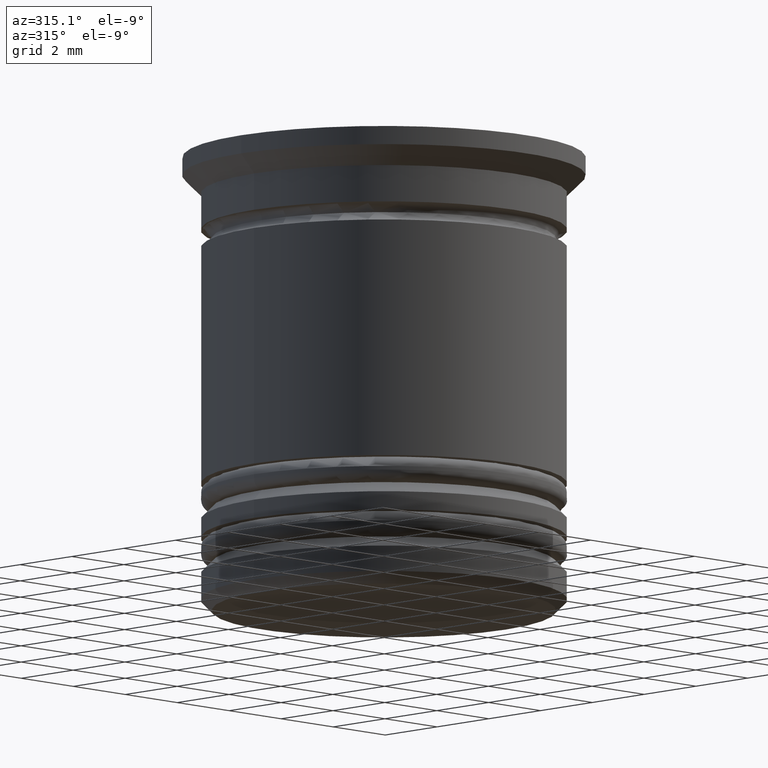
[diagram: clean part render]
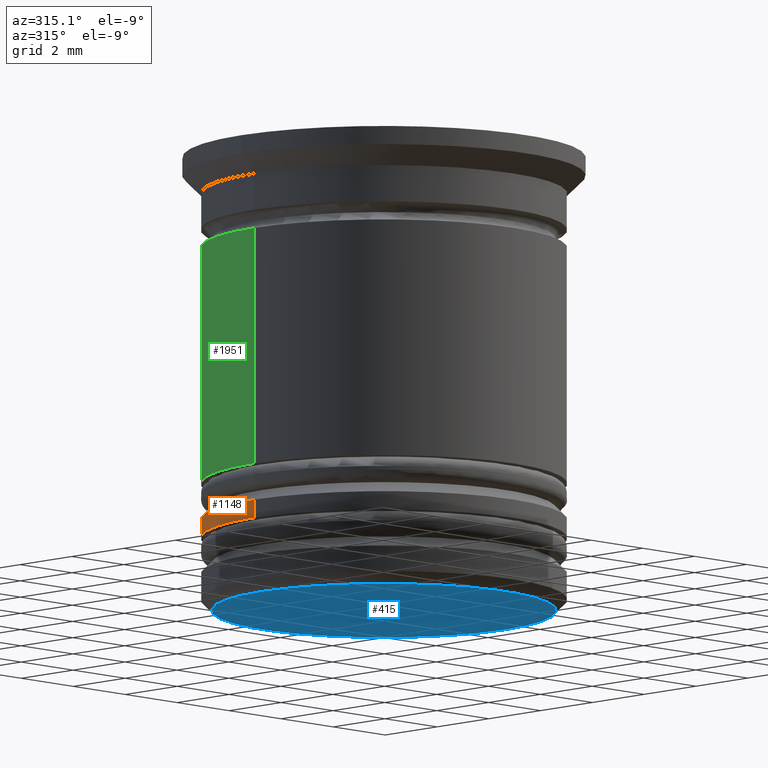
[diagram: same view with three faces highlighted in distinct colors, each labeled with its STEP entity id]
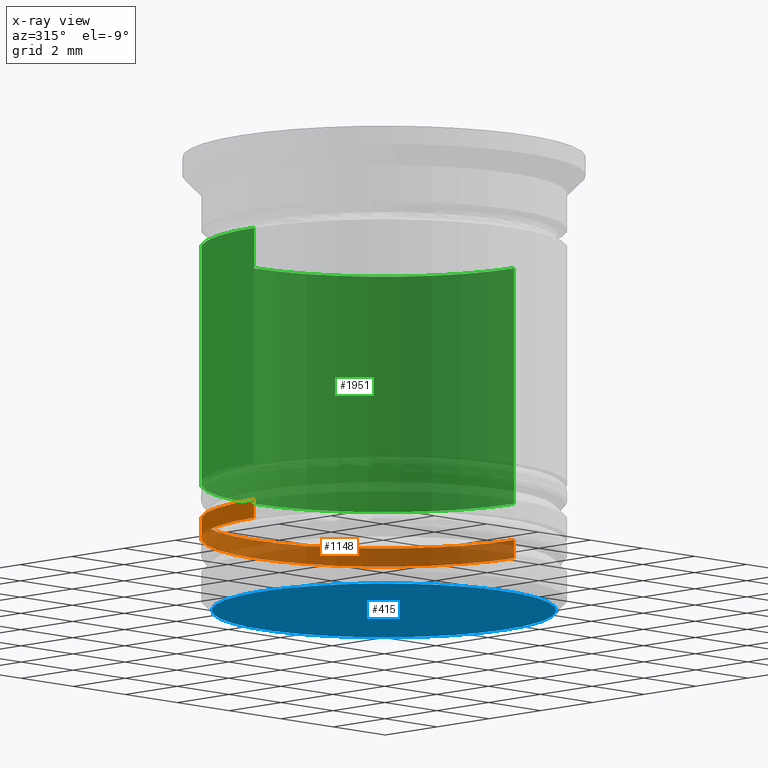
[diagram: x-ray of the same camera — body ghosted, the three highlighted faces saturated]
A machine part, auxiliary view with three faces highlighted in distinct colors.
The next image is the same camera in x-ray (body ghosted, the three faces saturated) — at least one of them is partly hidden behind the body in this view.
Their STEP definitions:

[orange] entity #1148 — the highlighted cylindrical surface (partial cylindrical patch) has radius 5 mm, axis along (-0, -0, 1).
#55 = DIRECTION ( 'NONE',  ( -0.000000000000000000, -0.000000000000000000, 1.000000000000000000 ) ) ;
#73 = VECTOR ( 'NONE', #1857, 1000.000000000000000 ) ;
#201 = DIRECTION ( 'NONE',  ( -0.000000000000000000, -0.000000000000000000, 1.000000000000000000 ) ) ;
#202 = CARTESIAN_POINT ( 'NONE',  ( 0.000000000000000000, 0.000000000000000000, 0.000000000000000000 ) ) ;
#235 = CYLINDRICAL_SURFACE ( 'NONE', #1730, 5.000000000000000888 ) ;
#241 = DIRECTION ( 'NONE',  ( -0.000000000000000000, -0.000000000000000000, 1.000000000000000000 ) ) ;
#250 = EDGE_CURVE ( 'NONE', #570, #2009, #323, .T. ) ;
#273 = CARTESIAN_POINT ( 'NONE',  ( -5.000000000000000888, 6.123233995736767268E-16, -10.00000000000000533 ) ) ;
#323 = CIRCLE ( 'NONE', #1306, 5.000000000000000888 ) ;
#411 = EDGE_CURVE ( 'NONE', #1025, #2009, #1646, .T. ) ;
#570 = VERTEX_POINT ( 'NONE', #273 ) ;
#583 = DIRECTION ( 'NONE',  ( -1.000000000000000000, 0.000000000000000000, 0.000000000000000000 ) ) ;
#801 = VERTEX_POINT ( 'NONE', #2066 ) ;
#844 = EDGE_CURVE ( 'NONE', #1025, #801, #1761, .T. ) ;
#860 = FACE_OUTER_BOUND ( 'NONE', #877, .T. ) ;
#877 = EDGE_LOOP ( 'NONE', ( #1924, #2020, #1322, #977 ) ) ;
#881 = DIRECTION ( 'NONE',  ( 0.000000000000000000, 0.000000000000000000, -1.000000000000000000 ) ) ;
#909 = CARTESIAN_POINT ( 'NONE',  ( -5.000000000000000888, 6.123233995736767268E-16, 0.000000000000000000 ) ) ;
#947 = CARTESIAN_POINT ( 'NONE',  ( 5.000000000000001776, 0.000000000000000000, -10.50000000000000178 ) ) ;
#977 = ORIENTED_EDGE ( 'NONE', *, *, #411, .F. ) ;
#1025 = VERTEX_POINT ( 'NONE', #947 ) ;
#1148 = ADVANCED_FACE ( 'NONE', ( #860 ), #235, .T. ) ;
#1172 = DIRECTION ( 'NONE',  ( 1.000000000000000000, 0.000000000000000000, 0.000000000000000000 ) ) ;
#1306 = AXIS2_PLACEMENT_3D ( 'NONE', #2002, #881, #583 ) ;
#1322 = ORIENTED_EDGE ( 'NONE', *, *, #250, .T. ) ;
#1347 = CARTESIAN_POINT ( 'NONE',  ( 5.000000000000000888, 0.000000000000000000, 0.000000000000000000 ) ) ;
#1473 = AXIS2_PLACEMENT_3D ( 'NONE', #1990, #241, #1505 ) ;
#1505 = DIRECTION ( 'NONE',  ( 1.000000000000000000, 0.000000000000000000, 0.000000000000000000 ) ) ;
#1529 = CARTESIAN_POINT ( 'NONE',  ( 5.000000000000000888, 0.000000000000000000, -10.00000000000000533 ) ) ;
#1646 = LINE ( 'NONE', #1347, #1836 ) ;
#1730 = AXIS2_PLACEMENT_3D ( 'NONE', #202, #55, #1172 ) ;
#1761 = CIRCLE ( 'NONE', #1473, 5.000000000000001776 ) ;
#1836 = VECTOR ( 'NONE', #201, 1000.000000000000000 ) ;
#1857 = DIRECTION ( 'NONE',  ( -0.000000000000000000, -0.000000000000000000, 1.000000000000000000 ) ) ;
#1876 = LINE ( 'NONE', #909, #73 ) ;
#1924 = ORIENTED_EDGE ( 'NONE', *, *, #844, .T. ) ;
#1929 = EDGE_CURVE ( 'NONE', #801, #570, #1876, .T. ) ;
#1990 = CARTESIAN_POINT ( 'NONE',  ( 0.000000000000000000, 0.000000000000000000, -10.50000000000000178 ) ) ;
#2002 = CARTESIAN_POINT ( 'NONE',  ( 0.000000000000000000, 0.000000000000000000, -10.00000000000000533 ) ) ;
#2009 = VERTEX_POINT ( 'NONE', #1529 ) ;
#2020 = ORIENTED_EDGE ( 'NONE', *, *, #1929, .T. ) ;
#2066 = CARTESIAN_POINT ( 'NONE',  ( -5.000000000000001776, 6.123233995736768255E-16, -10.50000000000000178 ) ) ;

[blue] entity #415 — the highlighted planar face has unit normal (0, 0, -1).
#110 = CARTESIAN_POINT ( 'NONE',  ( 0.000000000000000000, 0.000000000000000000, -12.50000000000000000 ) ) ;
#129 = AXIS2_PLACEMENT_3D ( 'NONE', #1608, #1596, #149 ) ;
#149 = DIRECTION ( 'NONE',  ( -1.000000000000000000, 0.000000000000000000, 0.000000000000000000 ) ) ;
#185 = AXIS2_PLACEMENT_3D ( 'NONE', #1490, #345, #512 ) ;
#303 = ORIENTED_EDGE ( 'NONE', *, *, #2042, .T. ) ;
#317 = CARTESIAN_POINT ( 'NONE',  ( 4.699999999999999289, 0.000000000000000000, -12.50000000000000000 ) ) ;
#345 = DIRECTION ( 'NONE',  ( 0.000000000000000000, 0.000000000000000000, -1.000000000000000000 ) ) ;
#415 = ADVANCED_FACE ( 'NONE', ( #658 ), #835, .T. ) ;
#512 = DIRECTION ( 'NONE',  ( -1.000000000000000000, 0.000000000000000000, -0.000000000000000000 ) ) ;
#555 = VERTEX_POINT ( 'NONE', #317 ) ;
#637 = CIRCLE ( 'NONE', #897, 4.699999999999999289 ) ;
#658 = FACE_OUTER_BOUND ( 'NONE', #1749, .T. ) ;
#835 = PLANE ( 'NONE',  #185 ) ;
#897 = AXIS2_PLACEMENT_3D ( 'NONE', #110, #1522, #1841 ) ;
#987 = CARTESIAN_POINT ( 'NONE',  ( -4.699999999999999289, 5.939536975864662969E-16, -12.50000000000000000 ) ) ;
#1050 = EDGE_CURVE ( 'NONE', #555, #1884, #2004, .T. ) ;
#1231 = ORIENTED_EDGE ( 'NONE', *, *, #1050, .T. ) ;
#1490 = CARTESIAN_POINT ( 'NONE',  ( 0.000000000000000000, 5.000000000000000888, -12.50000000000000000 ) ) ;
#1522 = DIRECTION ( 'NONE',  ( 0.000000000000000000, 0.000000000000000000, -1.000000000000000000 ) ) ;
#1596 = DIRECTION ( 'NONE',  ( 0.000000000000000000, 0.000000000000000000, -1.000000000000000000 ) ) ;
#1608 = CARTESIAN_POINT ( 'NONE',  ( 0.000000000000000000, 0.000000000000000000, -12.50000000000000000 ) ) ;
#1749 = EDGE_LOOP ( 'NONE', ( #1231, #303 ) ) ;
#1841 = DIRECTION ( 'NONE',  ( -1.000000000000000000, 0.000000000000000000, 0.000000000000000000 ) ) ;
#1884 = VERTEX_POINT ( 'NONE', #987 ) ;
#2004 = CIRCLE ( 'NONE', #129, 4.699999999999999289 ) ;
#2042 = EDGE_CURVE ( 'NONE', #1884, #555, #637, .T. ) ;

[green] entity #1951 — the highlighted cylindrical surface (partial cylindrical patch) has radius 5 mm, axis along (-0, -0, 1).
#59 = EDGE_CURVE ( 'NONE', #1342, #1024, #932, .T. ) ;
#67 = DIRECTION ( 'NONE',  ( 1.000000000000000000, 0.000000000000000000, 0.000000000000000000 ) ) ;
#100 = AXIS2_PLACEMENT_3D ( 'NONE', #1036, #366, #67 ) ;
#290 = DIRECTION ( 'NONE',  ( 1.000000000000000000, 0.000000000000000000, 0.000000000000000000 ) ) ;
#306 = EDGE_CURVE ( 'NONE', #485, #1342, #518, .T. ) ;
#332 = CARTESIAN_POINT ( 'NONE',  ( 4.999999999999999112, 0.000000000000000000, -2.500000000000000000 ) ) ;
#366 = DIRECTION ( 'NONE',  ( -0.000000000000000000, -0.000000000000000000, 1.000000000000000000 ) ) ;
#482 = CARTESIAN_POINT ( 'NONE',  ( -5.000000000000000888, 6.123233995736767268E-16, -9.000000000000001776 ) ) ;
#485 = VERTEX_POINT ( 'NONE', #547 ) ;
#518 = CIRCLE ( 'NONE', #1632, 5.000000000000000888 ) ;
#547 = CARTESIAN_POINT ( 'NONE',  ( 5.000000000000000888, 0.000000000000000000, -9.000000000000001776 ) ) ;
#563 = VECTOR ( 'NONE', #1882, 1000.000000000000000 ) ;
#653 = VERTEX_POINT ( 'NONE', #332 ) ;
#731 = CIRCLE ( 'NONE', #100, 4.999999999999999112 ) ;
#793 = CARTESIAN_POINT ( 'NONE',  ( -5.000000000000000000, 6.123233995736766282E-16, 0.000000000000000000 ) ) ;
#850 = EDGE_CURVE ( 'NONE', #653, #1024, #731, .T. ) ;
#902 = EDGE_CURVE ( 'NONE', #485, #653, #1229, .T. ) ;
#932 = LINE ( 'NONE', #793, #1568 ) ;
#952 = ORIENTED_EDGE ( 'NONE', *, *, #850, .F. ) ;
#1024 = VERTEX_POINT ( 'NONE', #1940 ) ;
#1036 = CARTESIAN_POINT ( 'NONE',  ( 0.000000000000000000, 0.000000000000000000, -2.500000000000000000 ) ) ;
#1084 = DIRECTION ( 'NONE',  ( -0.000000000000000000, -0.000000000000000000, 1.000000000000000000 ) ) ;
#1229 = LINE ( 'NONE', #1869, #563 ) ;
#1342 = VERTEX_POINT ( 'NONE', #482 ) ;
#1458 = CYLINDRICAL_SURFACE ( 'NONE', #1973, 5.000000000000000000 ) ;
#1485 = EDGE_LOOP ( 'NONE', ( #1722, #1847, #952, #1760 ) ) ;
#1542 = DIRECTION ( 'NONE',  ( 1.000000000000000000, 0.000000000000000000, 0.000000000000000000 ) ) ;
#1568 = VECTOR ( 'NONE', #1932, 1000.000000000000000 ) ;
#1570 = CARTESIAN_POINT ( 'NONE',  ( 0.000000000000000000, 0.000000000000000000, 0.000000000000000000 ) ) ;
#1632 = AXIS2_PLACEMENT_3D ( 'NONE', #1881, #1666, #1542 ) ;
#1666 = DIRECTION ( 'NONE',  ( -0.000000000000000000, -0.000000000000000000, 1.000000000000000000 ) ) ;
#1722 = ORIENTED_EDGE ( 'NONE', *, *, #306, .T. ) ;
#1760 = ORIENTED_EDGE ( 'NONE', *, *, #902, .F. ) ;
#1847 = ORIENTED_EDGE ( 'NONE', *, *, #59, .T. ) ;
#1869 = CARTESIAN_POINT ( 'NONE',  ( 5.000000000000000000, 0.000000000000000000, 0.000000000000000000 ) ) ;
#1881 = CARTESIAN_POINT ( 'NONE',  ( 0.000000000000000000, 0.000000000000000000, -9.000000000000001776 ) ) ;
#1882 = DIRECTION ( 'NONE',  ( -0.000000000000000000, -0.000000000000000000, 1.000000000000000000 ) ) ;
#1932 = DIRECTION ( 'NONE',  ( -0.000000000000000000, -0.000000000000000000, 1.000000000000000000 ) ) ;
#1940 = CARTESIAN_POINT ( 'NONE',  ( -4.999999999999999112, 6.123233995736766282E-16, -2.500000000000000000 ) ) ;
#1951 = ADVANCED_FACE ( 'NONE', ( #2068 ), #1458, .T. ) ;
#1973 = AXIS2_PLACEMENT_3D ( 'NONE', #1570, #1084, #290 ) ;
#2068 = FACE_OUTER_BOUND ( 'NONE', #1485, .T. ) ;